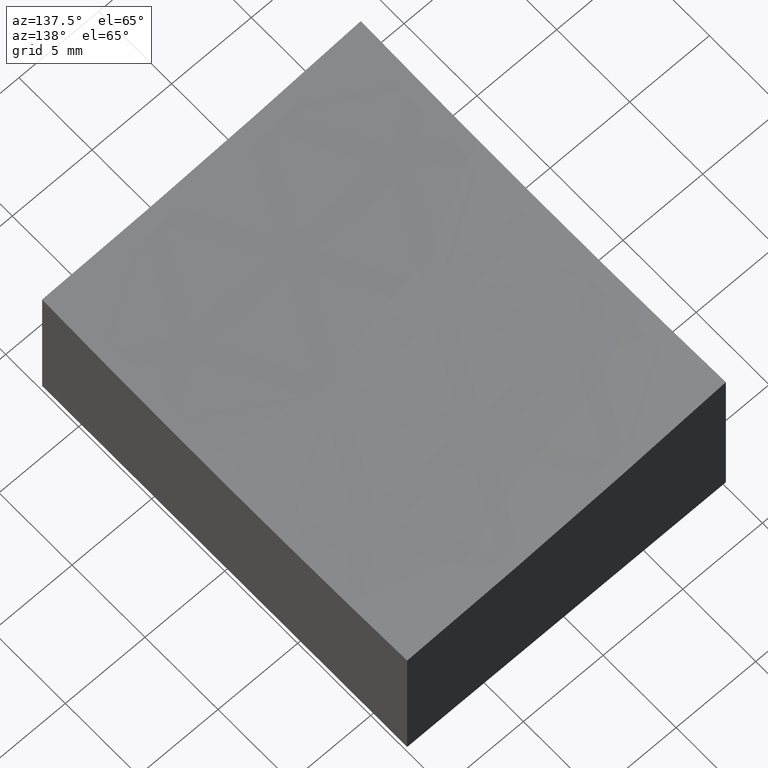
[diagram: clean part render]
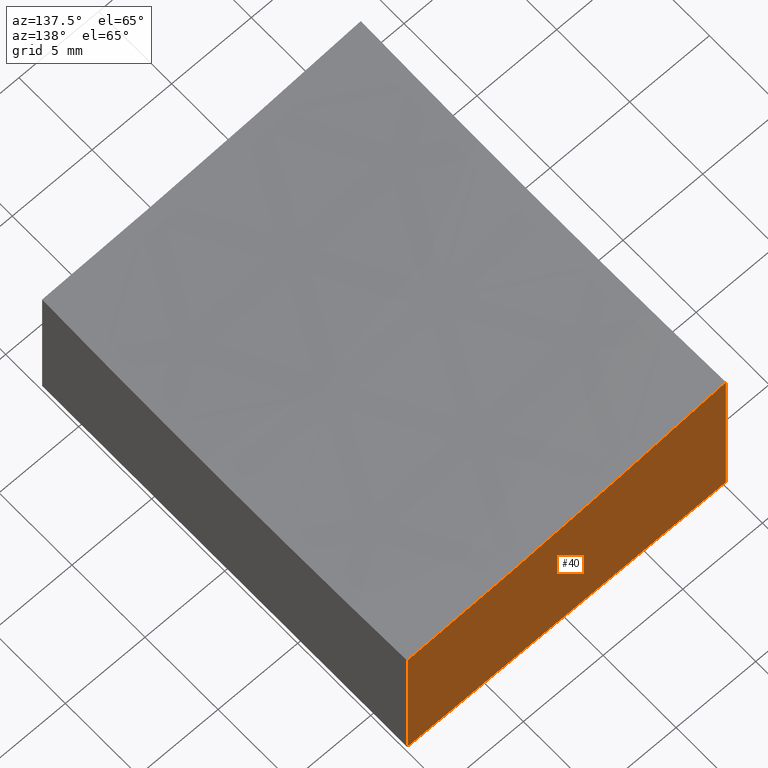
[diagram: same view with one face highlighted and labeled with its STEP entity id]
A machine part, auxiliary view. The second image highlights one B-rep face of the part: STEP entity #40.
In plain terms, the highlighted planar face has unit normal (0, -1, 0).
Its self-contained STEP definition (entity closure, byte-faithful):
#16 = CIRCLE ( 'NONE', #268, 199.6089927833914146 ) ;
#30 = EDGE_LOOP ( 'NONE', ( #264, #79, #164, #117 ) ) ;
#40 = ADVANCED_FACE ( 'NONE', ( #173 ), #69, .F. ) ;
#46 = DIRECTION ( 'NONE',  ( 1.000000000000000000, 1.734723475976807094E-16, 0.000000000000000000 ) ) ;
#47 = AXIS2_PLACEMENT_3D ( 'NONE', #153, #239, #46 ) ;
#56 = VERTEX_POINT ( 'NONE', #66 ) ;
#60 = LINE ( 'NONE', #252, #81 ) ;
#61 = EDGE_CURVE ( 'NONE', #198, #56, #152, .T. ) ;
#66 = CARTESIAN_POINT ( 'NONE',  ( -9.999999999999998224, 12.49999999999999645, -10.00000000000000000 ) ) ;
#69 = PLANE ( 'NONE',  #47 ) ;
#79 = ORIENTED_EDGE ( 'NONE', *, *, #108, .T. ) ;
#81 = VECTOR ( 'NONE', #204, 1000.000000000000000 ) ;
#93 = EDGE_CURVE ( 'NONE', #267, #56, #60, .T. ) ;
#108 = EDGE_CURVE ( 'NONE', #267, #246, #16, .T. ) ;
#117 = ORIENTED_EDGE ( 'NONE', *, *, #61, .T. ) ;
#122 = CARTESIAN_POINT ( 'NONE',  ( 10.00000000000000178, 12.50000000000000000, -10.00000000000000000 ) ) ;
#132 = VECTOR ( 'NONE', #144, 1000.000000000000000 ) ;
#138 = CARTESIAN_POINT ( 'NONE',  ( -9.999999999999996447, 12.49999999999999645, 0.9627560280642266655 ) ) ;
#144 = DIRECTION ( 'NONE',  ( -0.000000000000000000, -0.000000000000000000, -1.000000000000000000 ) ) ;
#152 = LINE ( 'NONE', #169, #223 ) ;
#153 = CARTESIAN_POINT ( 'NONE',  ( 10.00000000000000178, 12.50000000000000000, 10.00000000000000000 ) ) ;
#164 = ORIENTED_EDGE ( 'NONE', *, *, #206, .T. ) ;
#165 = CARTESIAN_POINT ( 'NONE',  ( 10.00000000000000178, 12.50000000000000000, 10.00000000000000000 ) ) ;
#169 = CARTESIAN_POINT ( 'NONE',  ( 10.00000000000000178, 12.50000000000000000, -10.00000000000000000 ) ) ;
#173 = FACE_OUTER_BOUND ( 'NONE', #30, .T. ) ;
#176 = CARTESIAN_POINT ( 'NONE',  ( 10.00000000000000178, 12.50000000000000000, -0.5463605280738026426 ) ) ;
#186 = CARTESIAN_POINT ( 'NONE',  ( 15.00000000000002487, 12.50000000000000178, 199.0000000000000000 ) ) ;
#198 = VERTEX_POINT ( 'NONE', #122 ) ;
#204 = DIRECTION ( 'NONE',  ( -0.000000000000000000, -0.000000000000000000, -1.000000000000000000 ) ) ;
#206 = EDGE_CURVE ( 'NONE', #246, #198, #251, .T. ) ;
#223 = VECTOR ( 'NONE', #232, 1000.000000000000000 ) ;
#232 = DIRECTION ( 'NONE',  ( -1.000000000000000000, -1.734723475976807094E-16, 0.000000000000000000 ) ) ;
#239 = DIRECTION ( 'NONE',  ( 1.734723475976807094E-16, -1.000000000000000000, 0.000000000000000000 ) ) ;
#246 = VERTEX_POINT ( 'NONE', #176 ) ;
#251 = LINE ( 'NONE', #165, #132 ) ;
#252 = CARTESIAN_POINT ( 'NONE',  ( -9.999999999999998224, 12.49999999999999645, 10.00000000000000000 ) ) ;
#264 = ORIENTED_EDGE ( 'NONE', *, *, #93, .F. ) ;
#267 = VERTEX_POINT ( 'NONE', #138 ) ;
#268 = AXIS2_PLACEMENT_3D ( 'NONE', #186, #276, #271 ) ;
#271 = DIRECTION ( 'NONE',  ( 1.000000000000000000, 1.738121566355747637E-16, 0.000000000000000000 ) ) ;
#276 = DIRECTION ( 'NONE',  ( 1.734723475976807094E-16, -1.000000000000000000, 0.000000000000000000 ) ) ;